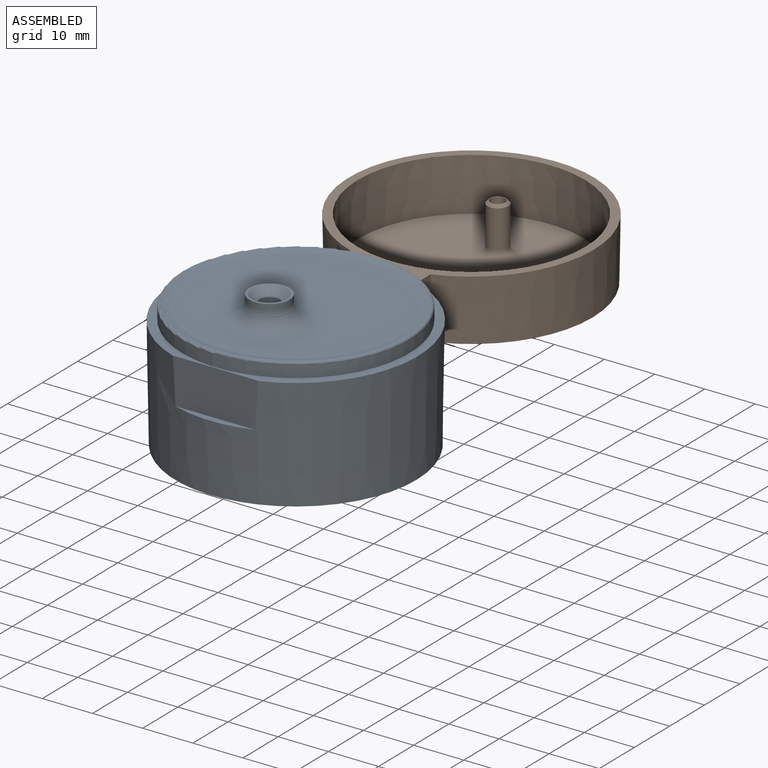
[diagram: assembled view]
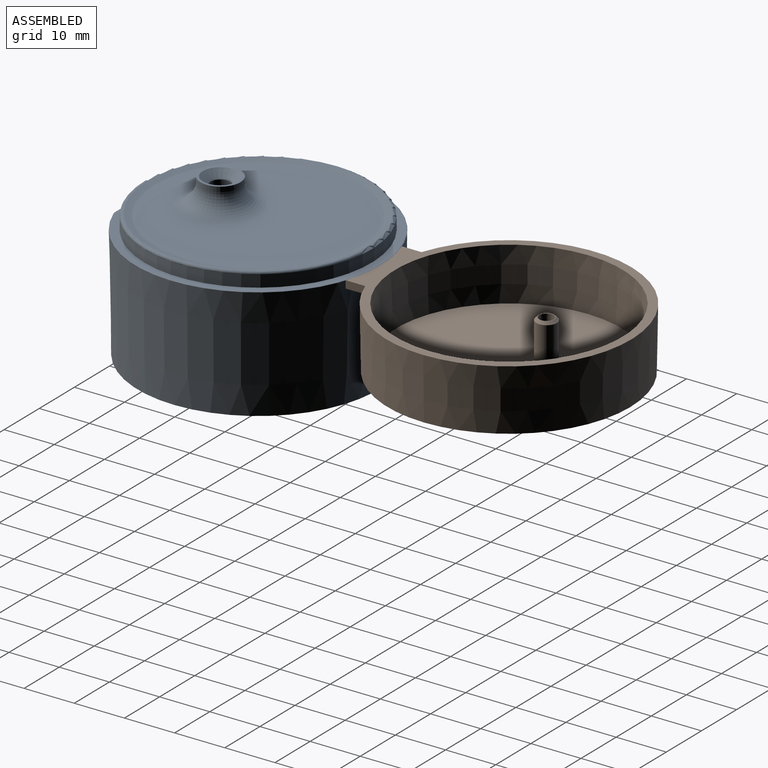
[diagram: assembled view, second angle]
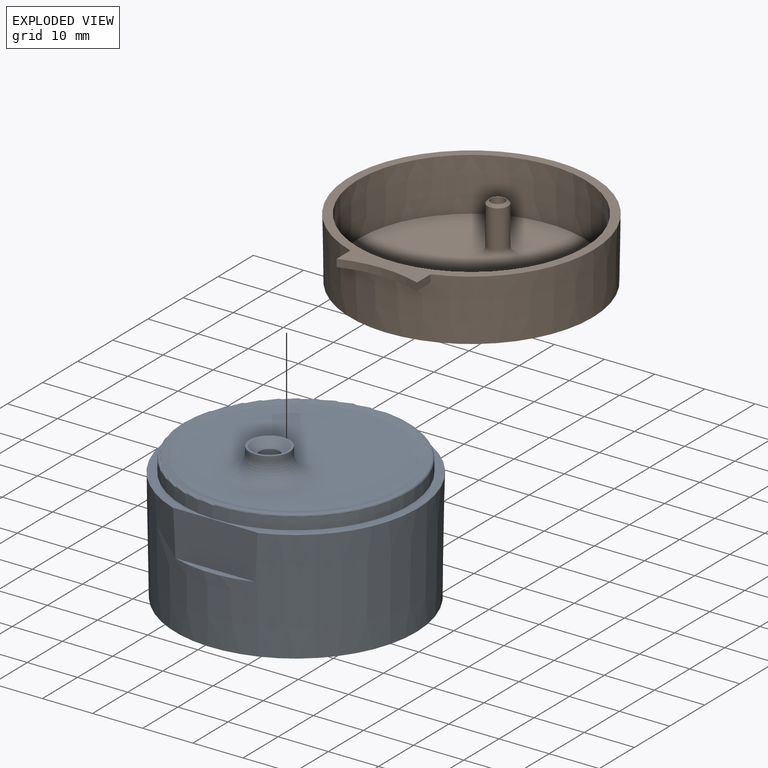
[diagram: exploded view]
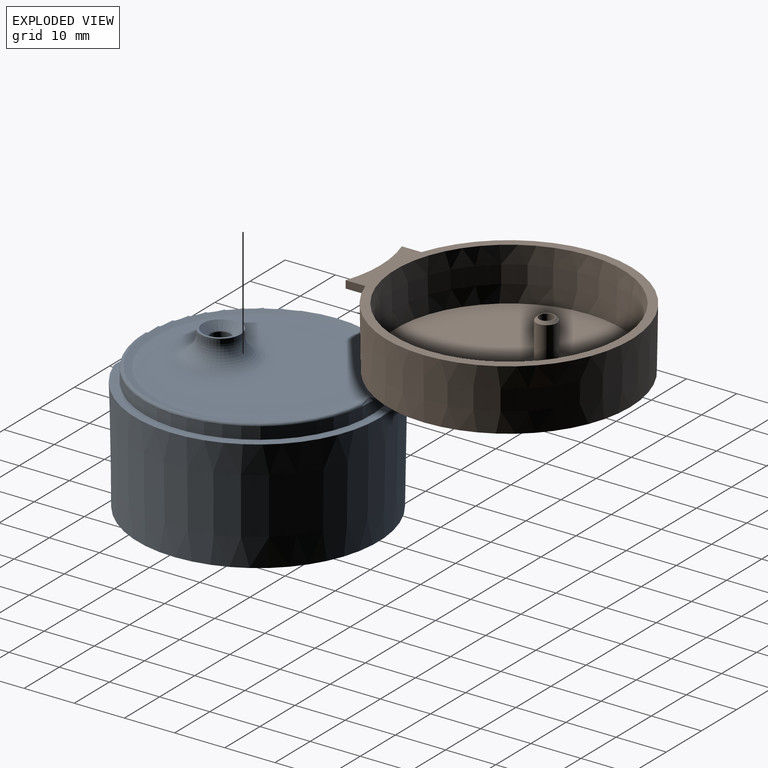
[diagram: exploded view, second angle]
ASSEMBLY  parts=2 mates=2
PART A: 62 faces, bbox 49.5x49.2x31.9 mm
  f0: plane 0.73x0.17mm, normal (0,0,-1), area 0.1mm2, adj f1,f2,f3,f4
  f1: plane 15.5x3.18mm, normal (0.03,1,0), area 23.9mm2, adj f0,f3,f4,f32
  f2: plane 15.5x3.18mm, normal (0.03,-1,0), area 23.9mm2, adj f0,f3,f4,f32
  f3: cone r=17.01mm half-angle=11deg, axis (0,0,1), area 12.7mm2, adj f0,f1,f2,f32
  f4: cone r=14mm half-angle=1deg, axis (0,0,1), area 1713mm2, adj f0,f1,f2,f5,f6,f7,f9,f10
  f5: plane 0.71x0.51mm, normal (0,0,-1), area 0.1mm2, adj f4,f6,f7,f8
  f6: plane 15.5x2.8mm, normal (0.88,0.48,0), area 23.9mm2, adj f4,f5,f8,f32
  f7: plane 15.5x2.71mm, normal (-0.85,-0.52,0), area 23.9mm2, adj f4,f5,f8,f32
  f8: cone r=17.01mm half-angle=11deg, axis (0,0,1), area 12.7mm2, adj f5,f6,f7,f32
  f9: plane 0.71x0.51mm, normal (0,0,-1), area 0.1mm2, adj f4,f10,f11,f12
  f10: plane 15.5x2.71mm, normal (0.85,-0.52,0), area 23.9mm2, adj f4,f9,f12,f32
  f11: plane 15.5x2.8mm, normal (-0.88,0.48,0), area 23.9mm2, adj f4,f9,f12,f32
  f12: cone r=17.01mm half-angle=11deg, axis (0,0,1), area 12.7mm2, adj f9,f10,f11,f32
  f13: plane 0.73x0.17mm, normal (0,0,-1), area 0.1mm2, adj f4,f14,f15,f16
  f14: plane 15.5x3.18mm, normal (-0.03,-1,0), area 23.9mm2, adj f4,f13,f16,f32
  f15: plane 15.5x3.18mm, normal (-0.03,1,0), area 23.9mm2, adj f4,f13,f16,f32
  f16: cone r=17.01mm half-angle=11deg, axis (0,0,1), area 12.7mm2, adj f13,f14,f15,f32
  f17: plane 0.71x0.51mm, normal (0,0,-1), area 0.1mm2, adj f4,f18,f19,f20
  f18: plane 15.5x2.8mm, normal (-0.88,-0.48,0), area 23.9mm2, adj f4,f17,f20,f32
  f19: plane 15.5x2.71mm, normal (0.85,0.52,0), area 23.9mm2, adj f4,f17,f20,f32
  f20: cone r=17.01mm half-angle=11deg, axis (0,0,1), area 12.7mm2, adj f17,f18,f19,f32
  f21: plane 0.71x0.51mm, normal (0,0,-1), area 0.1mm2, adj f4,f22,f23,f24
  f22: plane 15.5x2.71mm, normal (-0.85,0.52,0), area 23.9mm2, adj f4,f21,f24,f32
  f23: plane 15.5x2.8mm, normal (0.88,-0.48,0), area 23.9mm2, adj f4,f21,f24,f32
  f24: cone r=17.01mm half-angle=11deg, axis (0,0,1), area 12.7mm2, adj f21,f22,f23,f32
  f25: plane 48.59x47.19mm, normal (0,0,1), area 227mm2, adj f28,f59,f61
  f26: plane 48x48mm, normal (0,0,-1), area 219.1mm2, adj f27,f35
  f27: cone r=24mm half-angle=1deg, axis (0,0,1), area 3263mm2, adj f26,f59,f60,f61
  f28: cone r=22.65mm half-angle=1deg, axis (0,0,-1), area 337.2mm2, adj f25,f43
  f29: plane 25x25mm, normal (0,0,-1), area 462.6mm2, adj f30,f44
  f30: cone r=12.14mm half-angle=1deg, axis (0,0,1), area 1587.3mm2, adj f29,f31
  f31: plane 27.28x27.28mm, normal (0,0,-1), area 121.5mm2, adj f4,f30
  f32: plane 41.26x41.26mm, normal (0,0,-1), area 707.5mm2, adj f1,f2,f3,f4,f6,f7,f8,f10
  f33: cone r=21.18mm half-angle=1deg, axis (0,0,-1), area 268.1mm2, adj f49,f50
  f34: plane 44.73x43.64mm, normal (0,0,-1), area 86mm2, adj f47,f48,f50,f51,f52,f55
  f35: cone r=22.5mm half-angle=1deg, axis (0,0,1), area 2799mm2, adj f26,f45,f47,f48,f51,f53,f54
  f36: cone r=22.6mm half-angle=76deg, axis (0,0,1), area 191.7mm2, adj f37,f43
  f37: plane 41.2x41.2mm, normal (0,0,1), area 1131.8mm2, adj f36,f41
  f38: cylinder r=2mm len=4mm, axis (0,0,-1), area 44mm2, adj f42,f44
  f39: cylinder r=4mm len=8mm, axis (0,0,-1), area 25.1mm2, adj f40,f41
  f40: plane 8x8mm, normal (0,0,1), area 11.8mm2, adj f39,f42
  f41: torus R=8mm, axis (0,0,-1), area 215.3mm2, adj f37,f39
  f42: cone r=2mm half-angle=45deg, axis (0,0,1), area 36.7mm2, adj f38,f40
  f43: torus R=22.11mm, axis (0,0,-1), area 126.4mm2, adj f28,f36
  f44: torus R=3mm, axis (0,0,-1), area 23.3mm2, adj f29,f38
  f45: plane 13.08x1.62mm, normal (0,0,-1), area 9mm2, adj f35,f53,f54,f58
  f46: cone r=21.67mm half-angle=1deg, axis (0,0,1), area 106.9mm2, adj f50,f52,f55,f58
  f47: plane 8.5x0.8mm, normal (-0.95,0.31,0), area 5.9mm2, adj f34,f35,f51,f52,f53
  f48: plane 8.5x0.8mm, normal (0.95,0.31,0), area 5.9mm2, adj f34,f35,f51,f54,f55
  f49: torus R=20.63mm, axis (0,0,1), area 102.2mm2, adj f32,f33
  f50: torus R=21.67mm, axis (0,0,1), area 104.2mm2, adj f33,f34,f46,f52,f55
  f51: torus R=22.36mm, axis (0,0,1), area 101.8mm2, adj f34,f35,f47,f48
  f52: bspline ~26x0.9mm, area 6.6mm2, adj f34,f46,f47,f50,f56
  f53: cylinder r=0.5mm len=0.83mm, axis (-0.31,-0.95,0), area 0.5mm2, adj f35,f45,f47,f56
  f54: cylinder r=0.5mm len=0.83mm, axis (-0.31,0.95,0), area 0.5mm2, adj f35,f45,f48,f57
  f55: bspline ~26x0.9mm, area 6.6mm2, adj f34,f46,f48,f50,f57
  f56: sphere r=0.5mm, area 0.2mm2, adj f52,f53,f58
  f57: sphere r=0.5mm, area 0.2mm2, adj f54,f55,f58
  f58: torus R=22.02mm, axis (0,0,1), area 10mm2, adj f45,f46,f56,f57
  f59: plane 16.84x9mm, normal (0,-1,0), area 147.4mm2, adj f25,f27,f60,f61
  f60: plane 15.91x1.34mm, normal (0,0,1), area 14.3mm2, adj f27,f59
  f61: cone r=24.51mm half-angle=60deg, axis (0,0,-1), area 15.6mm2, adj f25,f27,f59
PART B: 18 faces, bbox 48.8x51.3x12.2 mm
  f0: cone r=24.18mm half-angle=1deg, axis (0,0,1), area 1844.1mm2, adj f1,f4,f5,f6,f10
  f1: plane 48.36x48.36mm, normal (0,0,-1), area 1836.7mm2, adj f0
  f2: plane 44.93x44.93mm, normal (0,0,1), area 1534.2mm2, adj f3,f15
  f3: cone r=22.65mm half-angle=1deg, axis (0,0,1), area 1488.5mm2, adj f2,f4
  f4: plane 51.35x48.79mm, normal (0,0,1), area 291.2mm2, adj f0,f3,f7,f8,f9
  f5: plane 1.5x0.08mm, normal (0,1,0), area 0.1mm2, adj f0,f7,f10
  f6: plane 1.5x0.08mm, normal (0,1,0), area 0.1mm2, adj f0,f9,f10
  f7: plane 3.91x1.5mm, normal (-1,0,0), area 5.9mm2, adj f4,f5,f8,f10
  f8: cylinder r=24.39mm len=16mm, axis (0,0,1), area 24.5mm2, adj f4,f7,f9,f10
  f9: plane 3.91x1.5mm, normal (1,0,0), area 5.9mm2, adj f4,f6,f8,f10
  f10: plane 16x3.91mm, normal (0,0,-1), area 34.1mm2, adj f0,f5,f6,f7,f8,f9
  f11: cylinder r=1.45mm len=9.5mm, axis (0,0,-1), area 86.6mm2, adj f13,f16
  f12: cylinder r=2.05mm len=7.5mm, axis (0,0,-1), area 96.6mm2, adj f15,f17
  f13: plane 3.1x3.1mm, normal (0,0,1), area 0.9mm2, adj f11,f17
  f14: plane 1.9x1.9mm, normal (0,0,1), area 2.8mm2, adj f16
  f15: torus R=4.05mm, axis (0,0,-1), area 54.8mm2, adj f2,f12
  f16: torus R=0.95mm, axis (0,0,-1), area 6.3mm2, adj f11,f14
  f17: cone r=1.55mm half-angle=45deg, axis (0,0,-1), area 8mm2, adj f12,f13
PLACE A t=(-16.6,-6.99,-32.5)mm fixed
PLACE B t=(-16.6,-6.99,-32.5)mm
MATE cylindrical B.f8 <-> A.f3  axis (0,0,1) through (-16.6,-6.99,-10)mm
MATE planar B.f4 <-> A.f25  axis (0,0,1) through (-24.6,16.05,-10)mm
